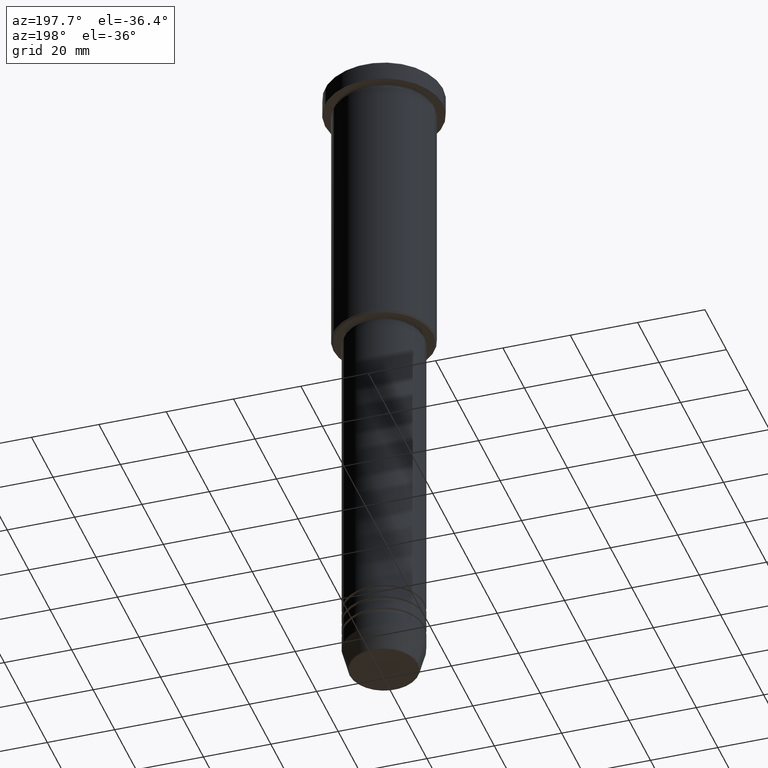
[diagram: clean part render]
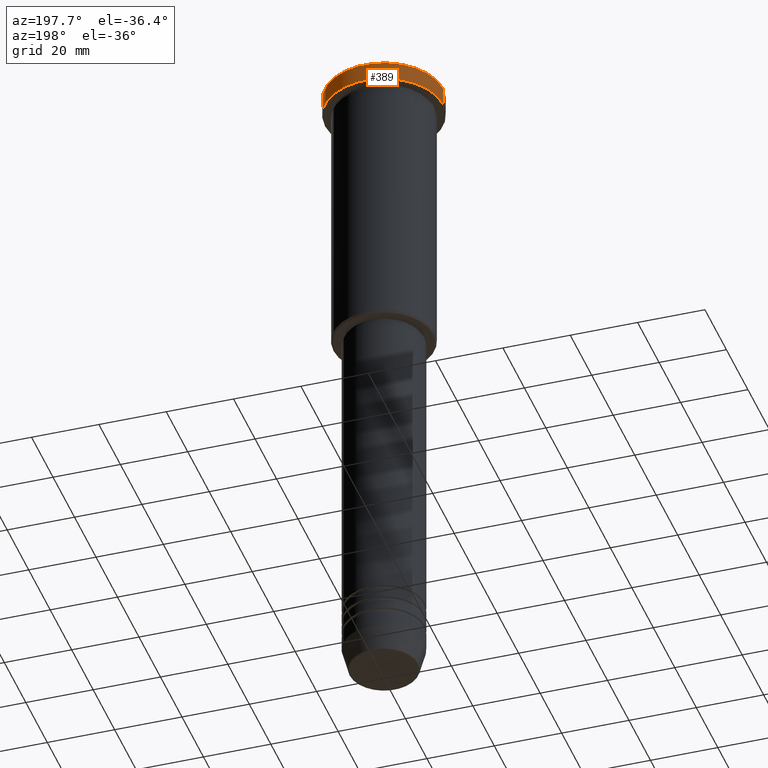
[diagram: same view with one face highlighted and labeled with its STEP entity id]
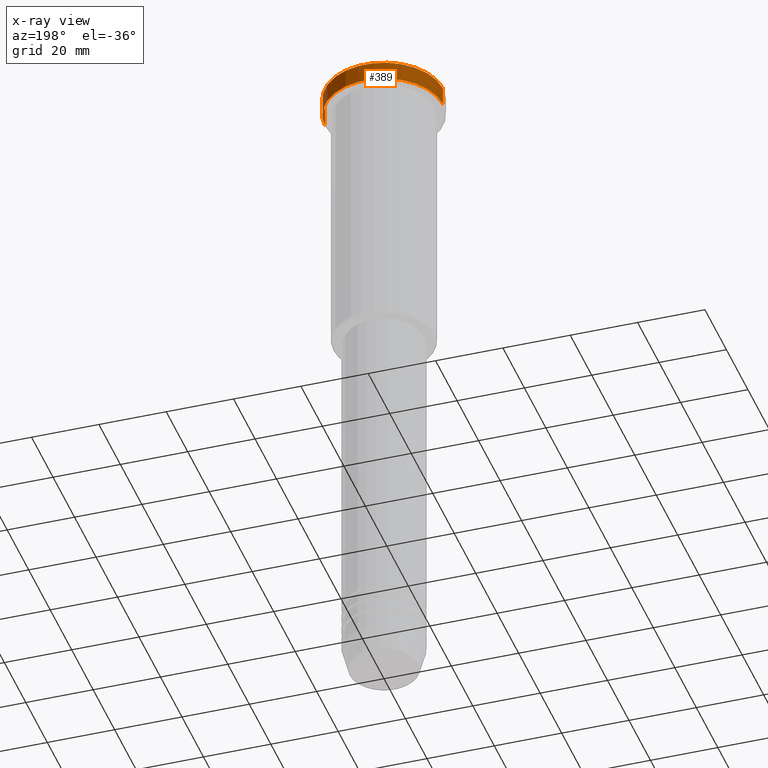
[diagram: x-ray of the same camera — body ghosted, the highlighted face saturated]
A machine part, auxiliary view. The second image highlights one B-rep face of the part: STEP entity #389.
The next image is the same camera in x-ray: the body ghosted, the highlighted face saturated — about 0% of this face is hidden behind the body in this view.
In plain terms, the highlighted cylindrical surface (partial cylindrical patch) has radius 17.5 mm, axis along (-0, -0, 1).
Its self-contained STEP definition (entity closure, byte-faithful):
#29 = ORIENTED_EDGE ( 'NONE', *, *, #692, .T. ) ;
#47 = VERTEX_POINT ( 'NONE', #1158 ) ;
#99 = VERTEX_POINT ( 'NONE', #503 ) ;
#116 = ORIENTED_EDGE ( 'NONE', *, *, #1176, .F. ) ;
#140 = CARTESIAN_POINT ( 'NONE',  ( 0.000000000000000000, 0.000000000000000000, -0.5000000000000003331 ) ) ;
#189 = AXIS2_PLACEMENT_3D ( 'NONE', #285, #646, #1014 ) ;
#213 = EDGE_LOOP ( 'NONE', ( #686, #29, #655, #116 ) ) ;
#285 = CARTESIAN_POINT ( 'NONE',  ( 0.000000000000000000, 0.000000000000000000, -5.999999999999995559 ) ) ;
#293 = CARTESIAN_POINT ( 'NONE',  ( 17.50000000000000000, 0.000000000000000000, 0.000000000000000000 ) ) ;
#328 = CIRCLE ( 'NONE', #614, 17.50000000000000000 ) ;
#379 = LINE ( 'NONE', #293, #446 ) ;
#387 = FACE_OUTER_BOUND ( 'NONE', #213, .T. ) ;
#389 = ADVANCED_FACE ( 'NONE', ( #387 ), #395, .T. ) ;
#395 = CYLINDRICAL_SURFACE ( 'NONE', #984, 17.50000000000000000 ) ;
#430 = CIRCLE ( 'NONE', #189, 17.50000000000000000 ) ;
#446 = VECTOR ( 'NONE', #1096, 1000.000000000000000 ) ;
#459 = EDGE_CURVE ( 'NONE', #577, #99, #328, .T. ) ;
#481 = DIRECTION ( 'NONE',  ( -0.000000000000000000, -0.000000000000000000, 1.000000000000000000 ) ) ;
#491 = DIRECTION ( 'NONE',  ( 1.000000000000000000, 0.000000000000000000, 0.000000000000000000 ) ) ;
#495 = DIRECTION ( 'NONE',  ( 0.000000000000000000, 0.000000000000000000, -1.000000000000000000 ) ) ;
#503 = CARTESIAN_POINT ( 'NONE',  ( 17.50000000000000000, 0.000000000000000000, -0.5000000000000003331 ) ) ;
#577 = VERTEX_POINT ( 'NONE', #990 ) ;
#614 = AXIS2_PLACEMENT_3D ( 'NONE', #140, #495, #874 ) ;
#623 = CARTESIAN_POINT ( 'NONE',  ( -17.50000000000000000, 2.143131898507868248E-15, 0.000000000000000000 ) ) ;
#628 = LINE ( 'NONE', #623, #860 ) ;
#646 = DIRECTION ( 'NONE',  ( -0.000000000000000000, -0.000000000000000000, 1.000000000000000000 ) ) ;
#655 = ORIENTED_EDGE ( 'NONE', *, *, #459, .T. ) ;
#686 = ORIENTED_EDGE ( 'NONE', *, *, #1139, .T. ) ;
#692 = EDGE_CURVE ( 'NONE', #862, #577, #628, .T. ) ;
#850 = CARTESIAN_POINT ( 'NONE',  ( -17.50000000000000000, 2.143131898507868248E-15, -5.999999999999995559 ) ) ;
#860 = VECTOR ( 'NONE', #909, 1000.000000000000000 ) ;
#862 = VERTEX_POINT ( 'NONE', #850 ) ;
#874 = DIRECTION ( 'NONE',  ( 1.000000000000000000, 0.000000000000000000, 0.000000000000000000 ) ) ;
#909 = DIRECTION ( 'NONE',  ( -0.000000000000000000, -0.000000000000000000, 1.000000000000000000 ) ) ;
#984 = AXIS2_PLACEMENT_3D ( 'NONE', #1146, #481, #491 ) ;
#990 = CARTESIAN_POINT ( 'NONE',  ( -17.50000000000000000, 2.143131898507868248E-15, -0.5000000000000003331 ) ) ;
#1014 = DIRECTION ( 'NONE',  ( 1.000000000000000000, 0.000000000000000000, 0.000000000000000000 ) ) ;
#1096 = DIRECTION ( 'NONE',  ( -0.000000000000000000, -0.000000000000000000, 1.000000000000000000 ) ) ;
#1139 = EDGE_CURVE ( 'NONE', #47, #862, #430, .T. ) ;
#1146 = CARTESIAN_POINT ( 'NONE',  ( 0.000000000000000000, 0.000000000000000000, 0.000000000000000000 ) ) ;
#1158 = CARTESIAN_POINT ( 'NONE',  ( 17.50000000000000000, 0.000000000000000000, -5.999999999999995559 ) ) ;
#1176 = EDGE_CURVE ( 'NONE', #47, #99, #379, .T. ) ;